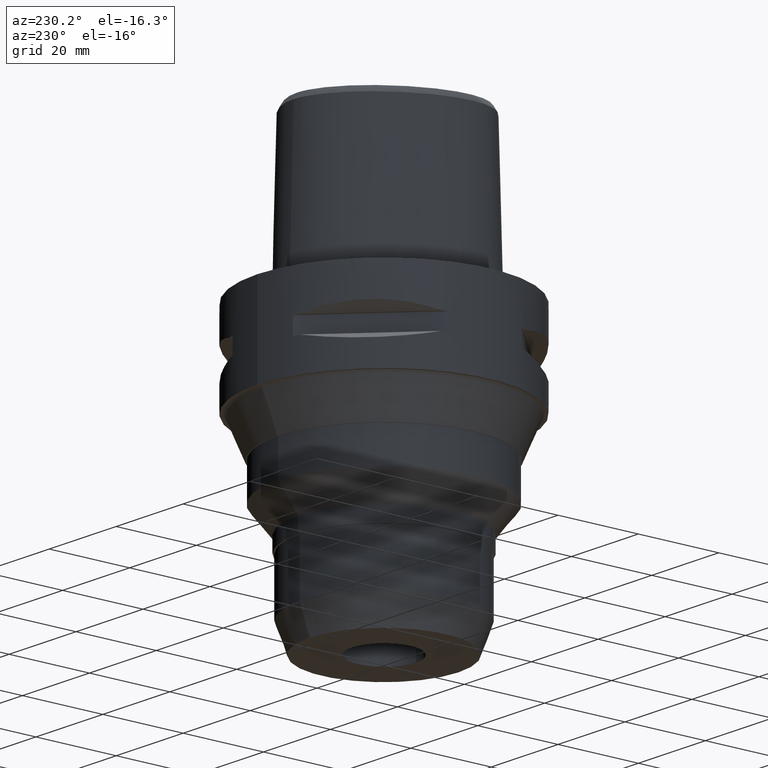
[diagram: clean part render]
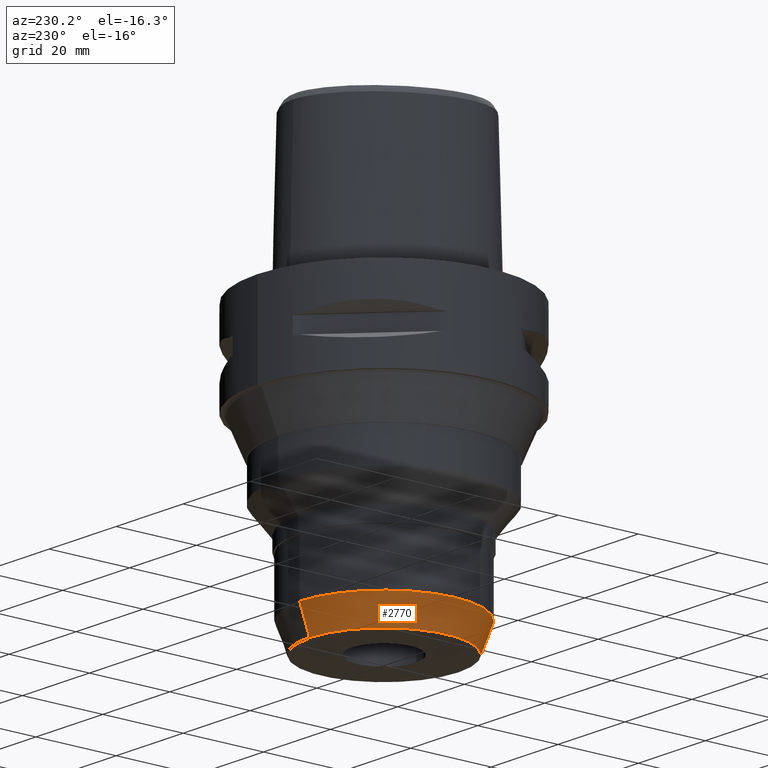
[diagram: same view with one face highlighted and labeled with its STEP entity id]
A machine part, auxiliary view. The second image highlights one B-rep face of the part: STEP entity #2770.
In plain terms, the highlighted conical surface has half-angle 20 deg.
Its self-contained STEP definition (entity closure, byte-faithful):
#743=DIRECTION('',(0.E0,-3.420201433258E-1,-9.396926207859E-1));
#744=VECTOR('',#743,7.236408852836E0);
#745=CARTESIAN_POINT('',(0.E0,2.1E1,-6.32E1));
#746=LINE('',#745,#744);
#758=CARTESIAN_POINT('',(0.E0,0.E0,-6.32E1));
#759=DIRECTION('',(0.E0,0.E0,1.E0));
#760=DIRECTION('',(0.E0,1.E0,0.E0));
#761=AXIS2_PLACEMENT_3D('',#758,#759,#760);
#766=DIRECTION('',(0.E0,3.420201433258E-1,-9.396926207859E-1));
#767=VECTOR('',#766,7.236408852836E0);
#768=CARTESIAN_POINT('',(0.E0,-2.1E1,-6.32E1));
#769=LINE('',#768,#767);
#781=CARTESIAN_POINT('',(0.E0,0.E0,-7.E1));
#782=DIRECTION('',(0.E0,0.E0,1.E0));
#783=DIRECTION('',(0.E0,1.E0,0.E0));
#784=AXIS2_PLACEMENT_3D('',#781,#782,#783);
#1676=CARTESIAN_POINT('',(0.E0,2.1E1,-6.32E1));
#1677=VERTEX_POINT('',#1676);
#1678=CARTESIAN_POINT('',(0.E0,-2.1E1,-6.32E1));
#1679=VERTEX_POINT('',#1678);
#1680=CARTESIAN_POINT('',(0.E0,1.852500240699E1,-7.E1));
#1681=VERTEX_POINT('',#1680);
#1682=CARTESIAN_POINT('',(0.E0,-1.852500240699E1,-7.E1));
#1683=VERTEX_POINT('',#1682);
#2758=CARTESIAN_POINT('',(0.E0,0.E0,-6.66E1));
#2759=DIRECTION('',(0.E0,0.E0,1.E0));
#2760=DIRECTION('',(0.E0,1.E0,0.E0));
#2761=AXIS2_PLACEMENT_3D('',#2758,#2759,#2760);
#2762=CONICAL_SURFACE('',#2761,1.976250120349E1,2.E1);
#2763=ORIENTED_EDGE('',*,*,#2748,.F.);
#2764=ORIENTED_EDGE('',*,*,#2725,.T.);
#2765=ORIENTED_EDGE('',*,*,#2752,.T.);
#2767=ORIENTED_EDGE('',*,*,#2766,.F.);
#2768=EDGE_LOOP('',(#2763,#2764,#2765,#2767));
#2769=FACE_OUTER_BOUND('',#2768,.F.);
#762=CIRCLE('',#761,2.1E1);
#785=CIRCLE('',#784,1.852500240699E1);
#2725=EDGE_CURVE('',#1677,#1679,#762,.T.);
#2748=EDGE_CURVE('',#1677,#1681,#746,.T.);
#2752=EDGE_CURVE('',#1679,#1683,#769,.T.);
#2766=EDGE_CURVE('',#1681,#1683,#785,.T.);
#2770=ADVANCED_FACE('',(#2769),#2762,.T.);